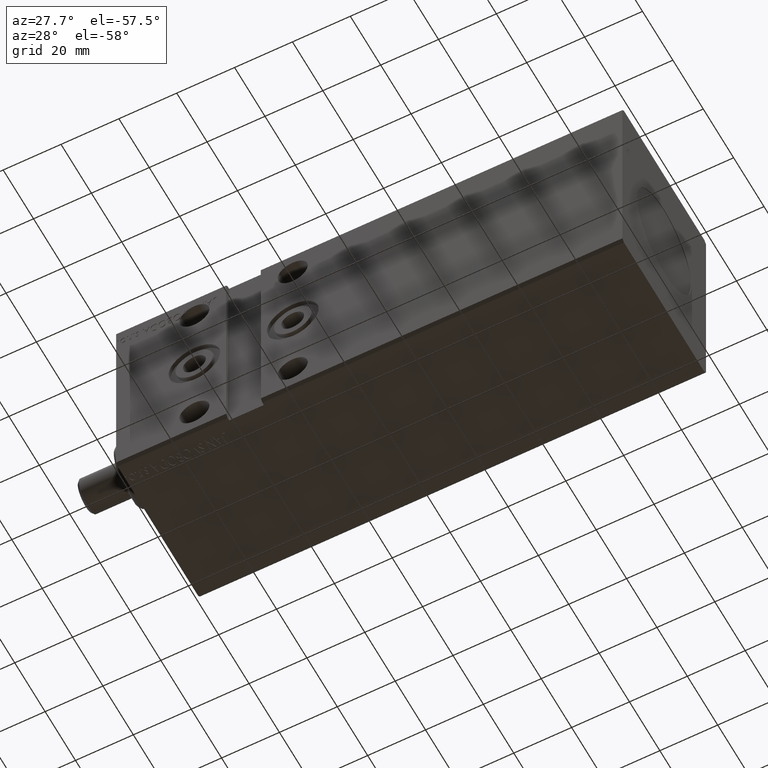
[diagram: clean part render]
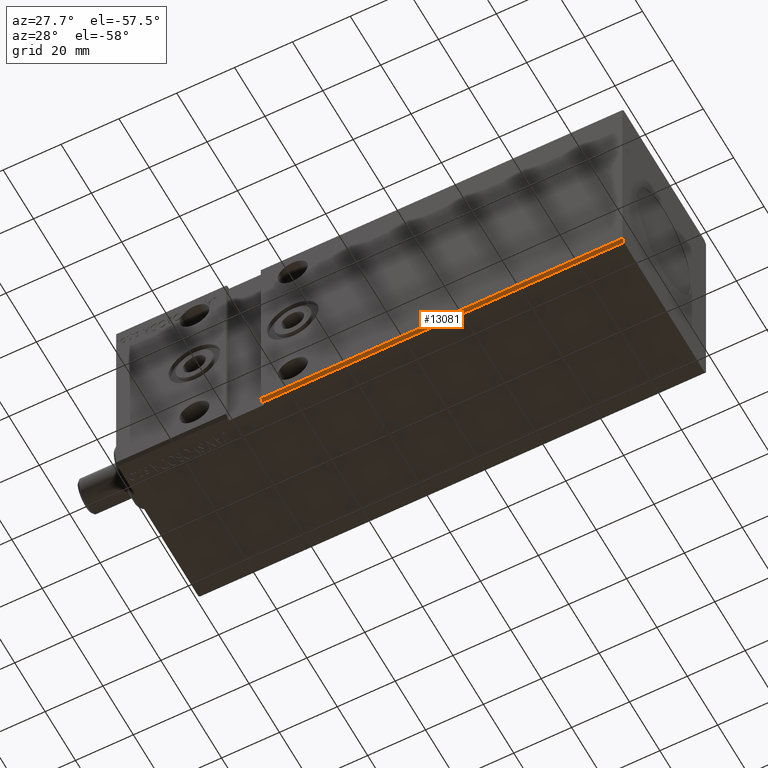
[diagram: same view with one face highlighted and labeled with its STEP entity id]
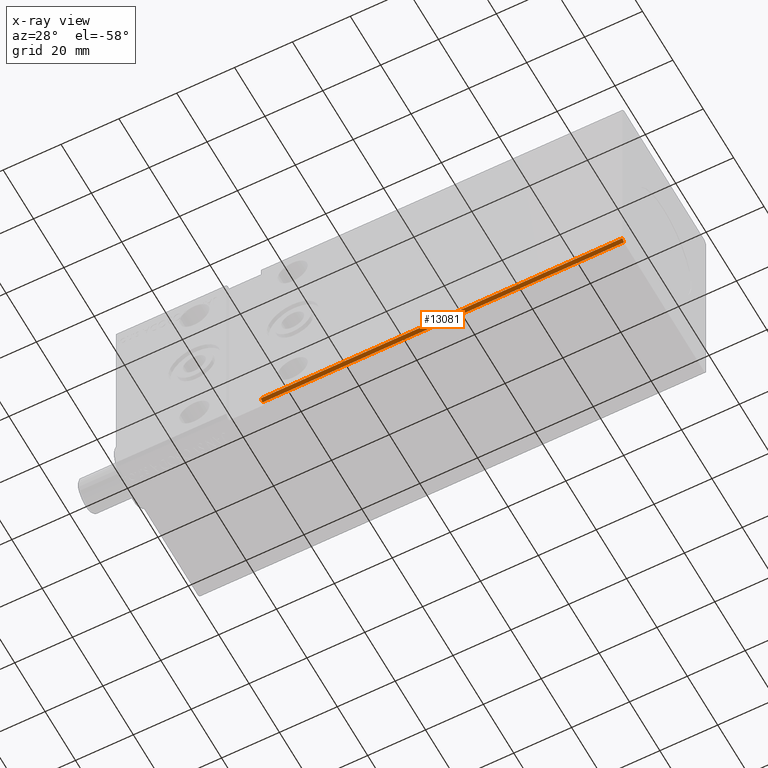
[diagram: x-ray of the same camera — body ghosted, the highlighted face saturated]
A machine part, auxiliary view. The second image highlights one B-rep face of the part: STEP entity #13081.
The next image is the same camera in x-ray: the body ghosted, the highlighted face saturated — about 0% of this face is hidden behind the body in this view.
In plain terms, the highlighted planar face has unit normal (0, 0.7071, 0.7071).
Its self-contained STEP definition (entity closure, byte-faithful):
#456 = VECTOR ( 'NONE', #33517, 1000.000000000000114 ) ;
#1649 = LINE ( 'NONE', #21594, #21064 ) ;
#2366 = VECTOR ( 'NONE', #22611, 1000.000000000000000 ) ;
#3706 = LINE ( 'NONE', #22404, #2366 ) ;
#4415 = VERTEX_POINT ( 'NONE', #24526 ) ;
#4447 = LINE ( 'NONE', #7431, #456 ) ;
#5156 = DIRECTION ( 'NONE',  ( -0.000000000000000000, 0.7071067811865499042, 0.7071067811865451302 ) ) ;
#5572 = DIRECTION ( 'NONE',  ( 0.000000000000000000, -0.7071067811865451302, 0.7071067811865499042 ) ) ;
#7116 = AXIS2_PLACEMENT_3D ( 'NONE', #17694, #5156, #5572 ) ;
#7431 = CARTESIAN_POINT ( 'NONE',  ( 175.0000000000000000, -27.50000000000000355, -36.49999999999998579 ) ) ;
#8566 = PLANE ( 'NONE',  #7116 ) ;
#11526 = FACE_OUTER_BOUND ( 'NONE', #28656, .T. ) ;
#12410 = ORIENTED_EDGE ( 'NONE', *, *, #28953, .T. ) ;
#12947 = DIRECTION ( 'NONE',  ( -1.000000000000000000, -0.000000000000000000, -0.000000000000000000 ) ) ;
#13081 = ADVANCED_FACE ( 'NONE', ( #11526 ), #8566, .F. ) ;
#13515 = VERTEX_POINT ( 'NONE', #34286 ) ;
#13558 = EDGE_CURVE ( 'NONE', #39653, #38396, #3706, .T. ) ;
#17375 = ORIENTED_EDGE ( 'NONE', *, *, #21301, .F. ) ;
#17694 = CARTESIAN_POINT ( 'NONE',  ( 175.0000000000000000, -27.50000000000000355, -36.49999999999998579 ) ) ;
#19417 = VECTOR ( 'NONE', #12947, 1000.000000000000000 ) ;
#20561 = CARTESIAN_POINT ( 'NONE',  ( 175.0000000000000000, -26.50000000000000355, -37.49999999999999289 ) ) ;
#21064 = VECTOR ( 'NONE', #37086, 1000.000000000000114 ) ;
#21301 = EDGE_CURVE ( 'NONE', #4415, #39653, #4447, .T. ) ;
#21594 = CARTESIAN_POINT ( 'NONE',  ( 50.00000000000000000, -27.49999999999999289, -36.50000000000000000 ) ) ;
#22322 = EDGE_CURVE ( 'NONE', #13515, #38396, #1649, .T. ) ;
#22404 = CARTESIAN_POINT ( 'NONE',  ( 175.0000000000000000, -26.50000000000000355, -37.49999999999999289 ) ) ;
#22611 = DIRECTION ( 'NONE',  ( -1.000000000000000000, -0.000000000000000000, -0.000000000000000000 ) ) ;
#24526 = CARTESIAN_POINT ( 'NONE',  ( 175.0000000000000000, -27.50000000000000355, -36.49999999999998579 ) ) ;
#28656 = EDGE_LOOP ( 'NONE', ( #12410, #31916, #31040, #17375 ) ) ;
#28953 = EDGE_CURVE ( 'NONE', #4415, #13515, #38841, .T. ) ;
#29673 = CARTESIAN_POINT ( 'NONE',  ( 50.00000000000000711, -26.50000000000000355, -37.49999999999999289 ) ) ;
#31040 = ORIENTED_EDGE ( 'NONE', *, *, #13558, .F. ) ;
#31916 = ORIENTED_EDGE ( 'NONE', *, *, #22322, .T. ) ;
#33517 = DIRECTION ( 'NONE',  ( 0.000000000000000000, 0.7071067811865451302, -0.7071067811865500152 ) ) ;
#34286 = CARTESIAN_POINT ( 'NONE',  ( 50.00000000000000711, -27.50000000000000000, -36.49999999999997868 ) ) ;
#35853 = CARTESIAN_POINT ( 'NONE',  ( 175.0000000000000000, -27.50000000000000355, -36.49999999999998579 ) ) ;
#37086 = DIRECTION ( 'NONE',  ( 1.308410382236483702E-16, 0.7071067811865451302, -0.7071067811865499042 ) ) ;
#38396 = VERTEX_POINT ( 'NONE', #29673 ) ;
#38841 = LINE ( 'NONE', #35853, #19417 ) ;
#39653 = VERTEX_POINT ( 'NONE', #20561 ) ;